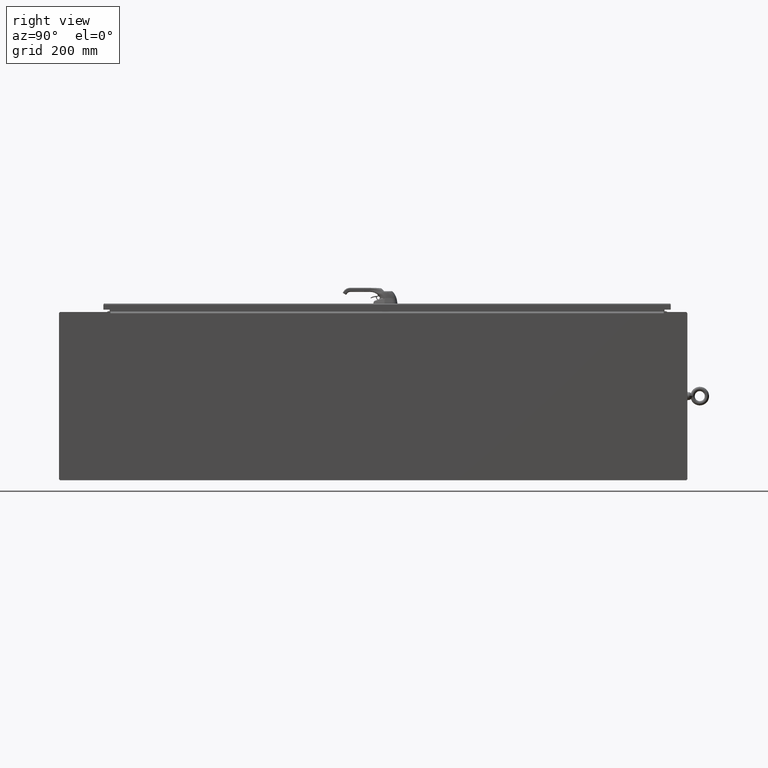
[diagram: clean part render]
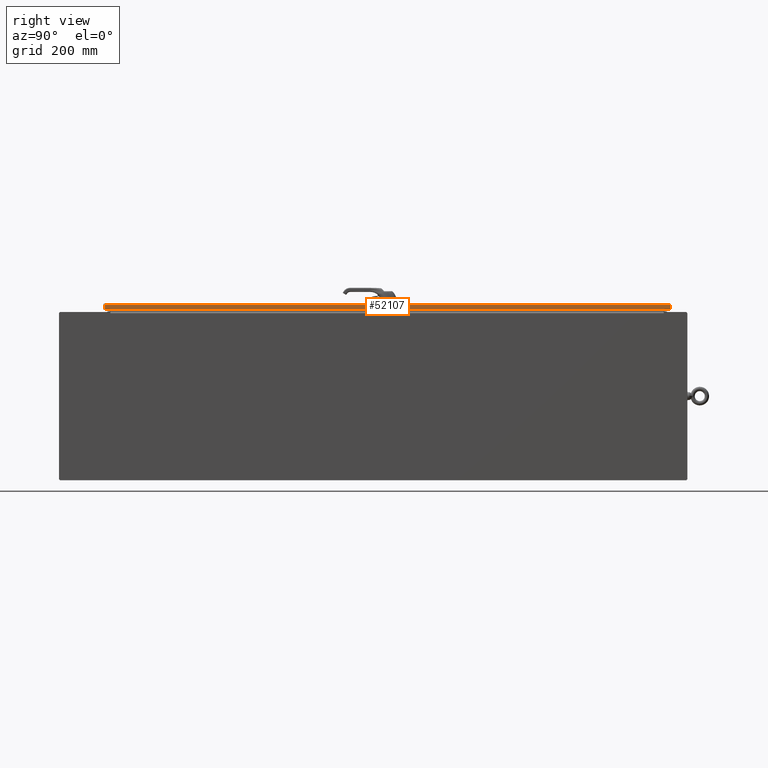
[diagram: same view with one face highlighted and labeled with its STEP entity id]
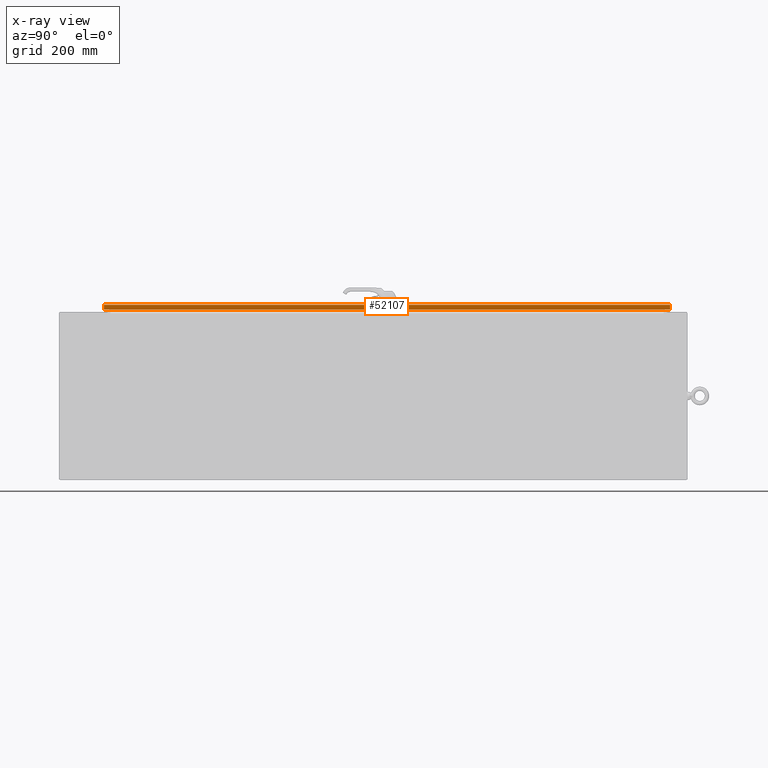
[diagram: x-ray of the same camera — body ghosted, the highlighted face saturated]
A machine part, right view. The second image highlights one B-rep face of the part: STEP entity #52107.
The next image is the same camera in x-ray: the body ghosted, the highlighted face saturated — about 0% of this face is hidden behind the body in this view.
In plain terms, the highlighted planar face has unit normal (1, -0, -0).
Its self-contained STEP definition (entity closure, byte-faithful):
#3571=PLANE('',#57373);
#5120=FACE_OUTER_BOUND('',#8400,.T.);
#8400=EDGE_LOOP('',(#37658,#37659,#37660,#37661));
#12075=LINE('',#85452,#15730);
#12081=LINE('',#85487,#15736);
#12087=LINE('',#85565,#15742);
#12089=LINE('',#85568,#15744);
#15730=VECTOR('',#65914,0.393700787401575);
#15736=VECTOR('',#65924,0.393700787401575);
#15742=VECTOR('',#65932,0.393700787401575);
#15744=VECTOR('',#65936,0.393700787401575);
#22499=VERTEX_POINT('',#85450);
#22500=VERTEX_POINT('',#85451);
#22507=VERTEX_POINT('',#85486);
#22510=VERTEX_POINT('',#85564);
#28001=EDGE_CURVE('',#22499,#22500,#12075,.T.);
#28009=EDGE_CURVE('',#22507,#22500,#12081,.T.);
#28017=EDGE_CURVE('',#22499,#22510,#12087,.T.);
#28019=EDGE_CURVE('',#22510,#22507,#12089,.T.);
#37658=ORIENTED_EDGE('',*,*,#28001,.T.);
#37659=ORIENTED_EDGE('',*,*,#28009,.F.);
#37660=ORIENTED_EDGE('',*,*,#28019,.F.);
#37661=ORIENTED_EDGE('',*,*,#28017,.F.);
#52107=ADVANCED_FACE('',(#5120),#3571,.T.);
#57373=AXIS2_PLACEMENT_3D('',#85569,#65937,#65938);
#65914=DIRECTION('',(2.27440786650048E-16,-1.,-1.27955059375059E-30));
#65924=DIRECTION('',(2.30314065722459E-14,3.96895642939322E-30,1.));
#65932=DIRECTION('',(-2.30314065722459E-14,-3.96895642939322E-30,-1.));
#65936=DIRECTION('',(2.40815011354336E-16,-1.,-6.93744718566233E-17));
#65937=DIRECTION('center_axis',(1.,2.27440786650048E-16,-2.30564128006134E-14));
#65938=DIRECTION('ref_axis',(-2.30564128006134E-14,-1.71884015085239E-16,
-1.));
#85450=CARTESIAN_POINT('',(18.40625,40.5827928932188,-0.0937500000000042));
#85451=CARTESIAN_POINT('',(18.40625,-40.5827928932188,-0.0937500000000098));
#85452=CARTESIAN_POINT('',(18.40625,-2.26427320895457E-15,-0.0937500000000042));
#85486=CARTESIAN_POINT('',(18.40625,-40.5827928932188,-0.771000000000014));
#85487=CARTESIAN_POINT('',(18.40625,-40.5827928932188,-0.0937500000000126));
#85564=CARTESIAN_POINT('',(18.40625,40.5827928932188,-0.771000000000005));
#85565=CARTESIAN_POINT('',(18.40625,40.5827928932188,-0.0937500000000042));
#85568=CARTESIAN_POINT('',(18.40625,40.5827928932188,-0.771000000000005));
#85569=CARTESIAN_POINT('Origin',(18.40625,1.02867701898046E-15,-0.328534203268305));